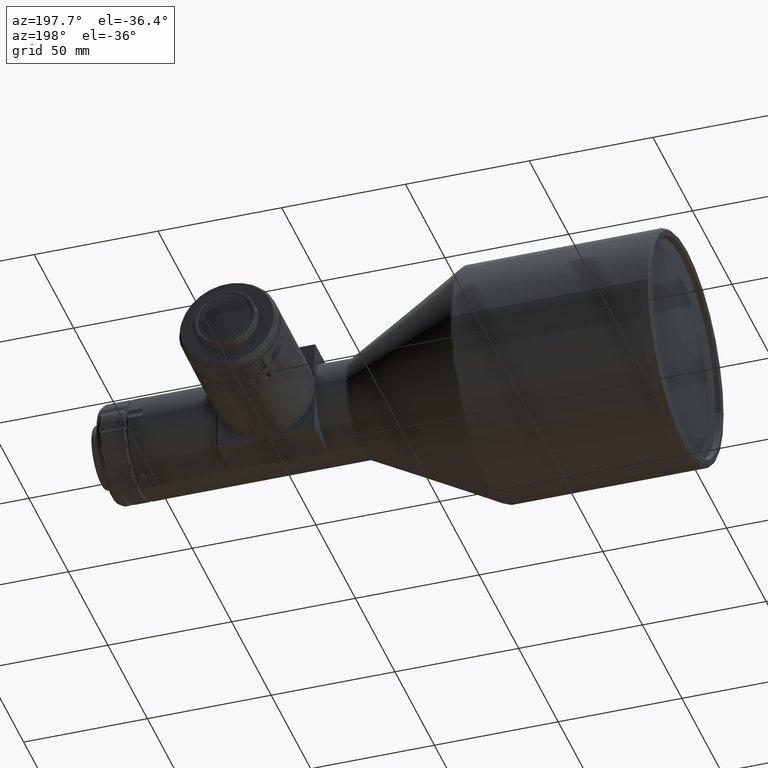
[diagram: clean part render]
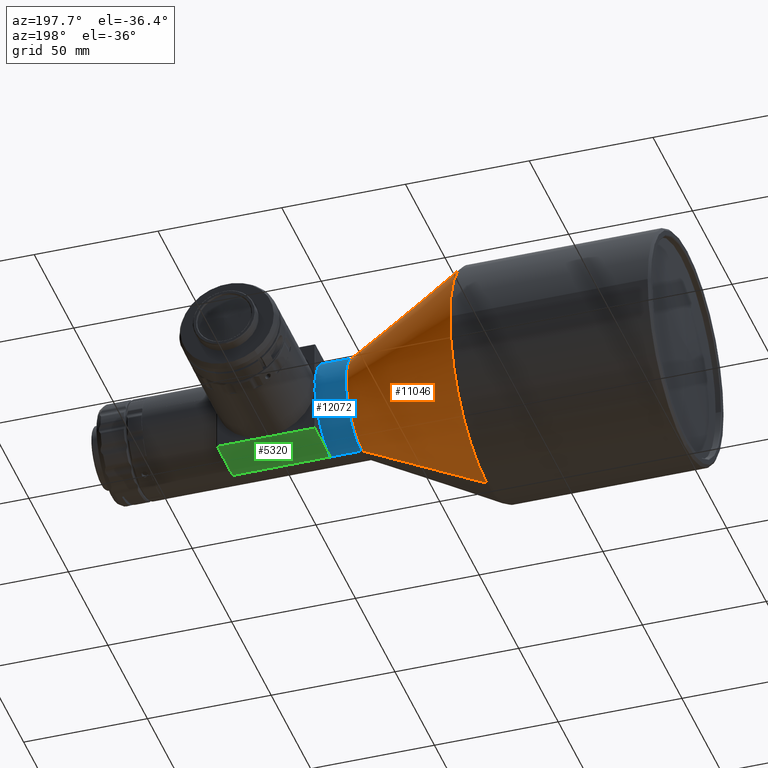
[diagram: same view with three faces highlighted in distinct colors, each labeled with its STEP entity id]
A machine part, auxiliary view with three faces highlighted in distinct colors.
Their STEP definitions:

[orange] entity #11046 — the highlighted conical surface has half-angle 28 deg.
#123 = CARTESIAN_POINT ( 'NONE',  ( 80.93894312589688400, -1.438776816035583900E-008, -46.76589518593537800 ) ) ;
#402 = CIRCLE ( 'NONE', #3773, 46.76589518600000900 ) ;
#452 = CARTESIAN_POINT ( 'NONE',  ( 80.93894312595021700, -2.099639707734379800E-009, 46.76589518590702700 ) ) ;
#1062 = AXIS2_PLACEMENT_3D ( 'NONE', #4651, #12248, #10132 ) ;
#1223 = DIRECTION ( 'NONE',  ( -0.8829475928525255500, 0.0000000000000000000, 0.4694715627979300100 ) ) ;
#1503 = DIRECTION ( 'NONE',  ( -1.000000000000000000, -6.858612197191043300E-016, -0.0000000000000000000 ) ) ;
#1509 = CONICAL_SURFACE ( 'NONE', #1062, 20.23410481400000200, 0.4886921905720475500 ) ;
#1551 = DIRECTION ( 'NONE',  ( 1.371722439436490100E-015, -1.000000000000000000, 0.0000000000000000000 ) ) ;
#1799 = LINE ( 'NONE', #3274, #10293 ) ;
#2029 = VERTEX_POINT ( 'NONE', #11073 ) ;
#2315 = DIRECTION ( 'NONE',  ( 1.780501079167062500E-015, 0.0000000000000000000, 1.000000000000000000 ) ) ;
#2329 = VERTEX_POINT ( 'NONE', #452 ) ;
#3274 = CARTESIAN_POINT ( 'NONE',  ( 130.8379834500000200, 0.0000000000000000000, 20.23410481400000200 ) ) ;
#3585 = CARTESIAN_POINT ( 'NONE',  ( 130.8379834500666200, 0.0000000000000000000, 20.23410481419811200 ) ) ;
#3606 = EDGE_CURVE ( 'NONE', #2029, #7998, #5783, .T. ) ;
#3732 = EDGE_CURVE ( 'NONE', #2329, #7998, #402, .T. ) ;
#3773 = AXIS2_PLACEMENT_3D ( 'NONE', #8297, #5583, #2315 ) ;
#3935 = FACE_OUTER_BOUND ( 'NONE', #8232, .T. ) ;
#4651 = CARTESIAN_POINT ( 'NONE',  ( 130.8379834500000200, 0.0000000000000000000, 0.0000000000000000000 ) ) ;
#5583 = DIRECTION ( 'NONE',  ( -1.000000000000000000, 0.0000000000000000000, 0.0000000000000000000 ) ) ;
#5606 = VECTOR ( 'NONE', #7304, 1000.000000000000000 ) ;
#5783 = LINE ( 'NONE', #7223, #5606 ) ;
#5810 = EDGE_CURVE ( 'NONE', #7242, #2029, #14083, .T. ) ;
#7223 = CARTESIAN_POINT ( 'NONE',  ( 130.8379834500000200, 2.477963169407715300E-015, -20.23410481400000200 ) ) ;
#7242 = VERTEX_POINT ( 'NONE', #3585 ) ;
#7304 = DIRECTION ( 'NONE',  ( -0.8829475928525255500, 5.749368466711906400E-017, -0.4694715627979300100 ) ) ;
#7524 = ORIENTED_EDGE ( 'NONE', *, *, #3732, .F. ) ;
#7998 = VERTEX_POINT ( 'NONE', #123 ) ;
#8141 = CARTESIAN_POINT ( 'NONE',  ( 130.8379834500985900, 0.0000000000000000000, 0.0000000000000000000 ) ) ;
#8232 = EDGE_LOOP ( 'NONE', ( #9878, #10610, #7524, #13432 ) ) ;
#8297 = CARTESIAN_POINT ( 'NONE',  ( 80.93894312599991300, 0.0000000000000000000, 0.0000000000000000000 ) ) ;
#9878 = ORIENTED_EDGE ( 'NONE', *, *, #5810, .T. ) ;
#10132 = DIRECTION ( 'NONE',  ( 0.0000000000000000000, 0.0000000000000000000, 1.000000000000000000 ) ) ;
#10293 = VECTOR ( 'NONE', #1223, 1000.000000000000000 ) ;
#10610 = ORIENTED_EDGE ( 'NONE', *, *, #3606, .T. ) ;
#11046 = ADVANCED_FACE ( 'NONE', ( #3935 ), #1509, .T. ) ;
#11073 = CARTESIAN_POINT ( 'NONE',  ( 130.8379834500741500, -2.075042135144987000E-009, -20.23410481419411200 ) ) ;
#12215 = EDGE_CURVE ( 'NONE', #7242, #2329, #1799, .T. ) ;
#12248 = DIRECTION ( 'NONE',  ( -1.000000000000000000, 0.0000000000000000000, 0.0000000000000000000 ) ) ;
#13432 = ORIENTED_EDGE ( 'NONE', *, *, #12215, .F. ) ;
#13735 = AXIS2_PLACEMENT_3D ( 'NONE', #8141, #1503, #1551 ) ;
#14083 = CIRCLE ( 'NONE', #13735, 20.23410481425894900 ) ;

[blue] entity #12072 — the highlighted cylindrical surface (partial cylindrical patch) has radius 20 mm, axis along (-1, 0, 0).
#57 = FACE_OUTER_BOUND ( 'NONE', #457, .T. ) ;
#76 = CIRCLE ( 'NONE', #13527, 20.00000000000000000 ) ;
#258 = DIRECTION ( 'NONE',  ( 0.0000000000000000000, 0.0000000000000000000, 1.000000000000000000 ) ) ;
#404 = CARTESIAN_POINT ( 'NONE',  ( 143.9099999975252000, 0.0000000000000000000, 0.0000000000000000000 ) ) ;
#457 = EDGE_LOOP ( 'NONE', ( #12057, #13604, #2761, #11631, #4513, #7172, #2590, #8811, #14171, #11224 ) ) ;
#1011 = CARTESIAN_POINT ( 'NONE',  ( 143.9099999987626000, 3.451086792411003100, 19.69999999876259600 ) ) ;
#1327 = CARTESIAN_POINT ( 'NONE',  ( 143.9099999975252000, 0.0000000000000000000, 0.0000000000000000000 ) ) ;
#1520 = DIRECTION ( 'NONE',  ( 0.0000000000000000000, 0.0000000000000000000, 1.000000000000000000 ) ) ;
#1522 = CARTESIAN_POINT ( 'NONE',  ( 143.9099999987626000, 3.451086792411003100, -19.69999999876259600 ) ) ;
#1960 = VERTEX_POINT ( 'NONE', #4261 ) ;
#2072 = CARTESIAN_POINT ( 'NONE',  ( 144.2845984410000100, 0.0000000000000000000, 0.0000000000000000000 ) ) ;
#2122 = DIRECTION ( 'NONE',  ( 0.0000000000000000000, 0.0000000000000000000, 1.000000000000000000 ) ) ;
#2383 = DIRECTION ( 'NONE',  ( 0.0000000000000000000, 0.0000000000000000000, 1.000000000000000000 ) ) ;
#2384 = EDGE_CURVE ( 'NONE', #10373, #9485, #7842, .T. ) ;
#2546 =( BOUNDED_CURVE ( )  B_SPLINE_CURVE ( 3, ( #6452, #7464, #11957, #5223 ),
 .UNSPECIFIED., .F., .T. ) 
 B_SPLINE_CURVE_WITH_KNOTS ( ( 4, 4 ),
 ( 2.968170332135634300, 3.019041490434794600 ),
 .UNSPECIFIED. ) 
 CURVE ( )  GEOMETRIC_REPRESENTATION_ITEM ( )  RATIONAL_B_SPLINE_CURVE ( ( 1.000000000000000000, 0.9997843553977601200, 0.9997843553977601200, 1.000000000000000000 ) ) 
 REPRESENTATION_ITEM ( '' )  );
#2561 = CARTESIAN_POINT ( 'NONE',  ( 143.8597487437186300, 20.05025125628139900, 0.8190595094403647600 ) ) ;
#2590 = ORIENTED_EDGE ( 'NONE', *, *, #10929, .F. ) ;
#2595 = CARTESIAN_POINT ( 'NONE',  ( 144.2099999999999500, 1.157599987435471200, 20.00000000000000000 ) ) ;
#2761 = ORIENTED_EDGE ( 'NONE', *, *, #2935, .F. ) ;
#2935 = EDGE_CURVE ( 'NONE', #13942, #7949, #76, .T. ) ;
#3351 = CARTESIAN_POINT ( 'NONE',  ( 143.9685265706169400, 19.75852657061693300, 3.116996827477791100 ) ) ;
#4261 = CARTESIAN_POINT ( 'NONE',  ( 143.9099999987626000, 19.69999999876259600, -3.451086792411003100 ) ) ;
#4291 = DIRECTION ( 'NONE',  ( -1.000000000000000000, 0.0000000000000000000, 0.0000000000000000000 ) ) ;
#4513 = ORIENTED_EDGE ( 'NONE', *, *, #12280, .F. ) ;
#4582 = CARTESIAN_POINT ( 'NONE',  ( 143.9099999987626000, 3.451086792411003100, 19.69999999876259600 ) ) ;
#5117 = CARTESIAN_POINT ( 'NONE',  ( 144.2845984410000100, 2.449293598294706500E-015, -20.00000000000000000 ) ) ;
#5223 = CARTESIAN_POINT ( 'NONE',  ( 144.0600000000000000, 19.85000000000000100, -2.444892635679496000 ) ) ;
#5890 = CARTESIAN_POINT ( 'NONE',  ( 144.2099999999999800, -4.102068570306623600E-009, -20.00000000000000000 ) ) ;
#5922 = VECTOR ( 'NONE', #7366, 1000.000000000000000 ) ;
#6047 = CARTESIAN_POINT ( 'NONE',  ( 143.9099999987626000, 19.69999999876259600, 3.451086792411003100 ) ) ;
#6285 = EDGE_CURVE ( 'NONE', #10276, #7949, #10954, .T. ) ;
#6452 = CARTESIAN_POINT ( 'NONE',  ( 143.9099999987626000, 19.69999999876259600, -3.451086792411003100 ) ) ;
#6453 =( BOUNDED_CURVE ( )  B_SPLINE_CURVE ( 3, ( #5890, #8113, #10342, #1522 ),
 .UNSPECIFIED., .F., .F. ) 
 B_SPLINE_CURVE_WITH_KNOTS ( ( 4, 4 ),
 ( 3.141592653384689600, 3.315014975043951900 ),
 .UNSPECIFIED. ) 
 CURVE ( )  GEOMETRIC_REPRESENTATION_ITEM ( )  RATIONAL_B_SPLINE_CURVE ( ( 1.000000000000000000, 0.9974952948227709900, 0.9974952948227709900, 1.000000000000000000 ) ) 
 REPRESENTATION_ITEM ( '' )  );
#6580 = CARTESIAN_POINT ( 'NONE',  ( 131.7769265759997700, -8.979362842873303400E-010, 19.99999999996833800 ) ) ;
#6739 = EDGE_CURVE ( 'NONE', #10276, #11505, #6453, .T. ) ;
#6902 = VERTEX_POINT ( 'NONE', #7447 ) ;
#6906 = DIRECTION ( 'NONE',  ( 1.000000000000000000, -0.0000000000000000000, -0.0000000000000000000 ) ) ;
#7114 = AXIS2_PLACEMENT_3D ( 'NONE', #404, #8157, #1520 ) ;
#7123 = EDGE_CURVE ( 'NONE', #11505, #1960, #9994, .T. ) ;
#7172 = ORIENTED_EDGE ( 'NONE', *, *, #2384, .T. ) ;
#7224 = AXIS2_PLACEMENT_3D ( 'NONE', #2072, #4291, #2122 ) ;
#7280 = CARTESIAN_POINT ( 'NONE',  ( 144.2099999999999800, -4.102068570306623600E-009, -20.00000000000000000 ) ) ;
#7305 = CARTESIAN_POINT ( 'NONE',  ( 144.0600000000000000, 19.85000000000000100, 2.444892635679495600 ) ) ;
#7366 = DIRECTION ( 'NONE',  ( -1.000000000000000000, 0.0000000000000000000, 0.0000000000000000000 ) ) ;
#7447 = CARTESIAN_POINT ( 'NONE',  ( 144.0600000000000000, 19.85000000000000100, -2.444892635679496000 ) ) ;
#7464 = CARTESIAN_POINT ( 'NONE',  ( 143.9685265706169400, 19.75852657061693300, -3.116996827477795500 ) ) ;
#7465 = VERTEX_POINT ( 'NONE', #14126 ) ;
#7537 = CARTESIAN_POINT ( 'NONE',  ( 144.2845984410000100, 0.0000000000000000000, 20.00000000000000000 ) ) ;
#7693 =( BOUNDED_CURVE ( )  B_SPLINE_CURVE ( 3, ( #9881, #13290, #3351, #14266 ),
 .UNSPECIFIED., .F., .T. ) 
 B_SPLINE_CURVE_WITH_KNOTS ( ( 4, 4 ),
 ( 3.264143816744791600, 3.315014975043951900 ),
 .UNSPECIFIED. ) 
 CURVE ( )  GEOMETRIC_REPRESENTATION_ITEM ( )  RATIONAL_B_SPLINE_CURVE ( ( 1.000000000000000000, 0.9997843553977601200, 0.9997843553977601200, 1.000000000000000000 ) ) 
 REPRESENTATION_ITEM ( '' )  );
#7782 = CARTESIAN_POINT ( 'NONE',  ( 143.9099999987626000, 3.451086792411003100, -19.69999999876259600 ) ) ;
#7842 = CIRCLE ( 'NONE', #7114, 20.00000000000000000 ) ;
#7949 = VERTEX_POINT ( 'NONE', #13465 ) ;
#8113 = CARTESIAN_POINT ( 'NONE',  ( 144.2100000002373900, 1.157599984705907500, -20.00000000023742800 ) ) ;
#8157 = DIRECTION ( 'NONE',  ( -1.000000000000000000, 0.0000000000000000000, 0.0000000000000000000 ) ) ;
#8191 = CARTESIAN_POINT ( 'NONE',  ( 144.2099999984238300, 0.0000000000000000000, 20.00000000000000000 ) ) ;
#8811 = ORIENTED_EDGE ( 'NONE', *, *, #13688, .F. ) ;
#8985 = CARTESIAN_POINT ( 'NONE',  ( 131.7769265759999900, 0.0000000000000000000, 0.0000000000000000000 ) ) ;
#8995 =( BOUNDED_CURVE ( )  B_SPLINE_CURVE ( 3, ( #4582, #12501, #2595, #12454 ),
 .UNSPECIFIED., .F., .F. ) 
 B_SPLINE_CURVE_WITH_KNOTS ( ( 4, 4 ),
 ( 2.968170332135634300, 3.141592653589793100 ),
 .UNSPECIFIED. ) 
 CURVE ( )  GEOMETRIC_REPRESENTATION_ITEM ( )  RATIONAL_B_SPLINE_CURVE ( ( 1.000000000000000000, 0.9974952948286919300, 0.9974952948286919300, 1.000000000000000000 ) ) 
 REPRESENTATION_ITEM ( '' )  );
#9485 = VERTEX_POINT ( 'NONE', #6047 ) ;
#9782 = AXIS2_PLACEMENT_3D ( 'NONE', #1327, #6906, #258 ) ;
#9881 = CARTESIAN_POINT ( 'NONE',  ( 144.0600000000000000, 19.85000000000000100, 2.444892635679495600 ) ) ;
#9994 = CIRCLE ( 'NONE', #9782, 20.00000000000000000 ) ;
#10108 = LINE ( 'NONE', #7537, #14302 ) ;
#10240 = VERTEX_POINT ( 'NONE', #8191 ) ;
#10276 = VERTEX_POINT ( 'NONE', #7280 ) ;
#10342 = CARTESIAN_POINT ( 'NONE',  ( 144.1097489003761000, 2.310850803506758300, -19.89974890037611400 ) ) ;
#10373 = VERTEX_POINT ( 'NONE', #1011 ) ;
#10929 = EDGE_CURVE ( 'NONE', #7465, #9485, #7693, .T. ) ;
#10954 = LINE ( 'NONE', #5117, #5922 ) ;
#10999 = CYLINDRICAL_SURFACE ( 'NONE', #7224, 20.00000000000000000 ) ;
#11224 = ORIENTED_EDGE ( 'NONE', *, *, #7123, .F. ) ;
#11360 = EDGE_CURVE ( 'NONE', #1960, #6902, #2546, .T. ) ;
#11505 = VERTEX_POINT ( 'NONE', #7782 ) ;
#11631 = ORIENTED_EDGE ( 'NONE', *, *, #11923, .F. ) ;
#11923 = EDGE_CURVE ( 'NONE', #10240, #13942, #10108, .T. ) ;
#11957 = CARTESIAN_POINT ( 'NONE',  ( 144.0185373555852400, 19.80853735558523400, -2.781526432854147600 ) ) ;
#12032 =( BOUNDED_CURVE ( )  B_SPLINE_CURVE ( 3, ( #12773, #13936, #2561, #7305 ),
 .UNSPECIFIED., .F., .F. ) 
 B_SPLINE_CURVE_WITH_KNOTS ( ( 4, 4 ),
 ( 6.160634144024587800, 6.405736470334584700 ),
 .UNSPECIFIED. ) 
 CURVE ( )  GEOMETRIC_REPRESENTATION_ITEM ( )  RATIONAL_B_SPLINE_CURVE ( ( 1.000000000000000000, 0.9950000000000001100, 0.9950000000000001100, 1.000000000000000000 ) ) 
 REPRESENTATION_ITEM ( '' )  );
#12057 = ORIENTED_EDGE ( 'NONE', *, *, #6739, .F. ) ;
#12072 = ADVANCED_FACE ( 'NONE', ( #57 ), #10999, .T. ) ;
#12280 = EDGE_CURVE ( 'NONE', #10373, #10240, #8995, .T. ) ;
#12454 = CARTESIAN_POINT ( 'NONE',  ( 144.2099999984238300, 0.0000000000000000000, 20.00000000000000000 ) ) ;
#12501 = CARTESIAN_POINT ( 'NONE',  ( 144.1097489001392700, 2.310850804858685300, 19.89974890013927600 ) ) ;
#12773 = CARTESIAN_POINT ( 'NONE',  ( 144.0600000000000000, 19.85000000000000100, -2.444892635679496000 ) ) ;
#12951 = DIRECTION ( 'NONE',  ( -1.000000000000000000, 0.0000000000000000000, 0.0000000000000000000 ) ) ;
#13290 = CARTESIAN_POINT ( 'NONE',  ( 144.0185373555852400, 19.80853735558523400, 2.781526432854142300 ) ) ;
#13465 = CARTESIAN_POINT ( 'NONE',  ( 131.7769265759008000, -6.153102855459935800E-009, -19.99999999996833800 ) ) ;
#13466 = DIRECTION ( 'NONE',  ( -1.000000000000000000, 0.0000000000000000000, 0.0000000000000000000 ) ) ;
#13527 = AXIS2_PLACEMENT_3D ( 'NONE', #8985, #13466, #2383 ) ;
#13604 = ORIENTED_EDGE ( 'NONE', *, *, #6285, .T. ) ;
#13688 = EDGE_CURVE ( 'NONE', #6902, #7465, #12032, .T. ) ;
#13936 = CARTESIAN_POINT ( 'NONE',  ( 143.8597487437186300, 20.05025125628139500, -0.8190595094403703100 ) ) ;
#13942 = VERTEX_POINT ( 'NONE', #6580 ) ;
#14126 = CARTESIAN_POINT ( 'NONE',  ( 144.0600000000000000, 19.85000000000000100, 2.444892635679495600 ) ) ;
#14171 = ORIENTED_EDGE ( 'NONE', *, *, #11360, .F. ) ;
#14266 = CARTESIAN_POINT ( 'NONE',  ( 143.9099999987626000, 19.69999999876259600, 3.451086792411003100 ) ) ;
#14302 = VECTOR ( 'NONE', #12951, 1000.000000000000000 ) ;

[green] entity #5320 — the highlighted planar face has unit normal (0, 0, 1).
#176 = CARTESIAN_POINT ( 'NONE',  ( 163.9100000000000000, 19.69999999999999900, -20.00000000000000000 ) ) ;
#301 = VERTEX_POINT ( 'NONE', #10067 ) ;
#387 = FACE_OUTER_BOUND ( 'NONE', #13551, .T. ) ;
#434 = EDGE_CURVE ( 'NONE', #9367, #301, #8994, .T. ) ;
#503 = EDGE_CURVE ( 'NONE', #10276, #7982, #3478, .T. ) ;
#635 = CARTESIAN_POINT ( 'NONE',  ( 144.2099999999999800, 0.0000000000000000000, -20.00000000000000000 ) ) ;
#919 = VECTOR ( 'NONE', #6122, 1000.000000000000000 ) ;
#1147 = CARTESIAN_POINT ( 'NONE',  ( 183.6099999999999900, 9.849999999999999600, -20.00000000000000000 ) ) ;
#1264 = LINE ( 'NONE', #12745, #919 ) ;
#1678 = DIRECTION ( 'NONE',  ( -1.000000000000000000, 0.0000000000000000000, 0.0000000000000000000 ) ) ;
#1725 = CARTESIAN_POINT ( 'NONE',  ( 163.9100000000000000, 19.69999999999999900, -20.00000000000000000 ) ) ;
#2278 = DIRECTION ( 'NONE',  ( 0.0000000000000000000, 1.000000000000000000, 0.0000000000000000000 ) ) ;
#2527 = ORIENTED_EDGE ( 'NONE', *, *, #6613, .F. ) ;
#3075 = AXIS2_PLACEMENT_3D ( 'NONE', #635, #9341, #12794 ) ;
#3478 = LINE ( 'NONE', #8795, #10767 ) ;
#3794 = VECTOR ( 'NONE', #5858, 1000.000000000000000 ) ;
#4199 = VECTOR ( 'NONE', #1678, 1000.000000000000000 ) ;
#4437 = ORIENTED_EDGE ( 'NONE', *, *, #434, .F. ) ;
#4858 = VECTOR ( 'NONE', #2278, 1000.000000000000000 ) ;
#5320 = ADVANCED_FACE ( 'NONE', ( #387 ), #9395, .F. ) ;
#5858 = DIRECTION ( 'NONE',  ( -1.000000000000000000, 0.0000000000000000000, 0.0000000000000000000 ) ) ;
#6122 = DIRECTION ( 'NONE',  ( -0.0000000000000000000, -1.000000000000000000, -0.0000000000000000000 ) ) ;
#6144 = ORIENTED_EDGE ( 'NONE', *, *, #10171, .F. ) ;
#6613 = EDGE_CURVE ( 'NONE', #7982, #9367, #7301, .T. ) ;
#6735 = CARTESIAN_POINT ( 'NONE',  ( 183.6099999999999900, 0.0000000000000000000, -20.00000000000000400 ) ) ;
#7280 = CARTESIAN_POINT ( 'NONE',  ( 144.2099999999999800, -4.102068570306623600E-009, -20.00000000000000000 ) ) ;
#7301 = LINE ( 'NONE', #1147, #4858 ) ;
#7732 = ORIENTED_EDGE ( 'NONE', *, *, #10809, .F. ) ;
#7982 = VERTEX_POINT ( 'NONE', #6735 ) ;
#8123 = CARTESIAN_POINT ( 'NONE',  ( 183.6099999999999900, 19.69999999999999900, -20.00000000000000700 ) ) ;
#8462 = VERTEX_POINT ( 'NONE', #9299 ) ;
#8795 = CARTESIAN_POINT ( 'NONE',  ( 163.9100000000000000, 0.0000000000000000000, -20.00000000000000000 ) ) ;
#8994 = LINE ( 'NONE', #176, #3794 ) ;
#9299 = CARTESIAN_POINT ( 'NONE',  ( 144.2099999999813600, 19.69999999999999900, -19.99999999998140200 ) ) ;
#9341 = DIRECTION ( 'NONE',  ( 0.0000000000000000000, 0.0000000000000000000, 1.000000000000000000 ) ) ;
#9367 = VERTEX_POINT ( 'NONE', #8123 ) ;
#9395 = PLANE ( 'NONE',  #3075 ) ;
#9920 = LINE ( 'NONE', #1725, #4199 ) ;
#10067 = CARTESIAN_POINT ( 'NONE',  ( 163.9100000000000000, 19.69999999999999900, -19.99999999999999300 ) ) ;
#10171 = EDGE_CURVE ( 'NONE', #8462, #10276, #1264, .T. ) ;
#10276 = VERTEX_POINT ( 'NONE', #7280 ) ;
#10700 = ORIENTED_EDGE ( 'NONE', *, *, #503, .F. ) ;
#10767 = VECTOR ( 'NONE', #13310, 1000.000000000000000 ) ;
#10809 = EDGE_CURVE ( 'NONE', #301, #8462, #9920, .T. ) ;
#12745 = CARTESIAN_POINT ( 'NONE',  ( 144.2099999999999800, 9.849999999999999600, -20.00000000000000000 ) ) ;
#12794 = DIRECTION ( 'NONE',  ( 1.000000000000000000, 0.0000000000000000000, 0.0000000000000000000 ) ) ;
#13310 = DIRECTION ( 'NONE',  ( 1.000000000000000000, 0.0000000000000000000, 0.0000000000000000000 ) ) ;
#13551 = EDGE_LOOP ( 'NONE', ( #6144, #7732, #4437, #2527, #10700 ) ) ;